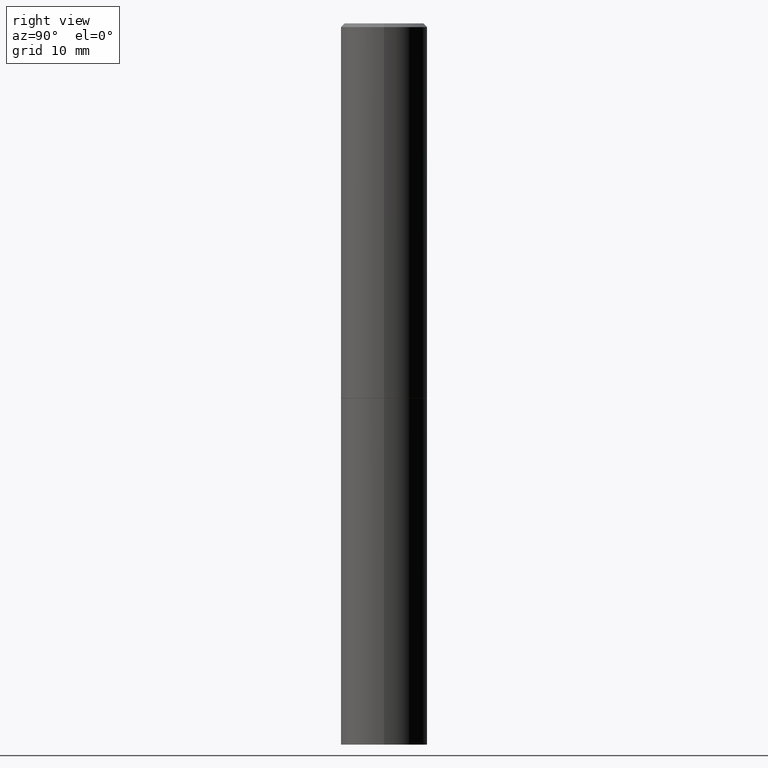
[diagram: clean part render]
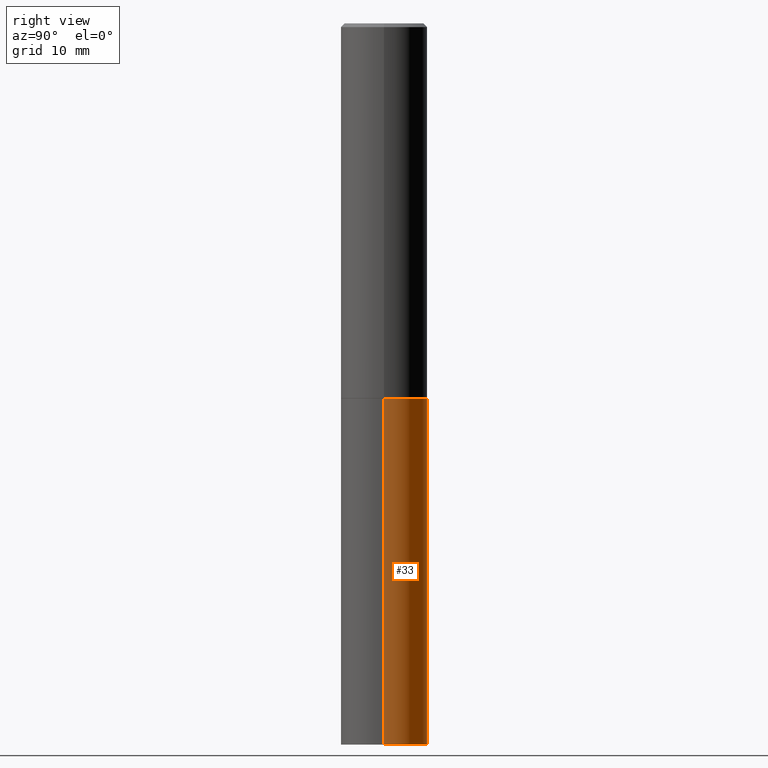
[diagram: same view with one face highlighted and labeled with its STEP entity id]
A machine part, right view. The second image highlights one B-rep face of the part: STEP entity #33.
In plain terms, the highlighted cylindrical surface (partial cylindrical patch) has radius 5.9995 mm, axis along (-0, 0, 1).
Its self-contained STEP definition (entity closure, byte-faithful):
#20 = CARTESIAN_POINT ( 'NONE',  ( 0.2361999999999999933, -8.797136381349184727E-15, -2.047200000000000131 ) ) ;
#22 = CARTESIAN_POINT ( 'NONE',  ( 5.006363740022212241E-29, -7.147760596879688202E-15, -2.047200000000000131 ) ) ;
#25 = VECTOR ( 'NONE', #352, 39.37007874015748143 ) ;
#33 = ADVANCED_FACE ( 'NONE', ( #71 ), #156, .T. ) ;
#35 = VECTOR ( 'NONE', #147, 39.37007874015748143 ) ;
#36 = CARTESIAN_POINT ( 'NONE',  ( 0.000000000000000000, 0.000000000000000000, 0.000000000000000000 ) ) ;
#41 = AXIS2_PLACEMENT_3D ( 'NONE', #36, #187, #351 ) ;
#49 = CIRCLE ( 'NONE', #234, 0.2361999999999999933 ) ;
#51 = VERTEX_POINT ( 'NONE', #219 ) ;
#71 = FACE_OUTER_BOUND ( 'NONE', #169, .T. ) ;
#80 = EDGE_CURVE ( 'NONE', #51, #238, #245, .T. ) ;
#87 = CARTESIAN_POINT ( 'NONE',  ( -0.2361999999999999933, 1.678301941865356591E-15, -1.161852468318208757E-29 ) ) ;
#95 = ORIENTED_EDGE ( 'NONE', *, *, #80, .F. ) ;
#96 = EDGE_CURVE ( 'NONE', #51, #188, #49, .T. ) ;
#99 = CARTESIAN_POINT ( 'NONE',  ( 9.627810689950883669E-29, -1.374596203102546341E-14, -3.937000000000000277 ) ) ;
#113 = CIRCLE ( 'NONE', #160, 0.2361999999999999933 ) ;
#135 = CARTESIAN_POINT ( 'NONE',  ( -0.2361999999999999933, -8.768559372087217836E-15, -2.047200000000000131 ) ) ;
#139 = CARTESIAN_POINT ( 'NONE',  ( -0.2361999999999999933, -8.768559372087217836E-15, -3.937000000000000277 ) ) ;
#147 = DIRECTION ( 'NONE',  ( -2.445468806185136877E-29, 3.491481338843145188E-15, 1.000000000000000000 ) ) ;
#150 = DIRECTION ( 'NONE',  ( 1.000000000000000000, -6.982962677686265133E-15, 0.000000000000000000 ) ) ;
#156 = CYLINDRICAL_SURFACE ( 'NONE', #41, 0.2361999999999999933 ) ;
#160 = AXIS2_PLACEMENT_3D ( 'NONE', #22, #224, #360 ) ;
#169 = EDGE_LOOP ( 'NONE', ( #202, #354, #300, #95 ) ) ;
#185 = EDGE_CURVE ( 'NONE', #238, #243, #113, .T. ) ;
#187 = DIRECTION ( 'NONE',  ( -2.445468806185136597E-29, 3.491481338843145583E-15, 1.000000000000000000 ) ) ;
#188 = VERTEX_POINT ( 'NONE', #139 ) ;
#202 = ORIENTED_EDGE ( 'NONE', *, *, #96, .T. ) ;
#215 = CARTESIAN_POINT ( 'NONE',  ( 0.2361999999999999933, -1.649375784469496131E-15, 1.151752954443000088E-29 ) ) ;
#219 = CARTESIAN_POINT ( 'NONE',  ( 0.2361999999999999933, -1.539533781549495994E-14, -3.937000000000000277 ) ) ;
#224 = DIRECTION ( 'NONE',  ( -2.445468806185136597E-29, 3.491481338843145583E-15, 1.000000000000000000 ) ) ;
#234 = AXIS2_PLACEMENT_3D ( 'NONE', #99, #346, #150 ) ;
#238 = VERTEX_POINT ( 'NONE', #20 ) ;
#243 = VERTEX_POINT ( 'NONE', #135 ) ;
#245 = LINE ( 'NONE', #215, #25 ) ;
#265 = LINE ( 'NONE', #87, #35 ) ;
#300 = ORIENTED_EDGE ( 'NONE', *, *, #185, .F. ) ;
#326 = EDGE_CURVE ( 'NONE', #188, #243, #265, .T. ) ;
#346 = DIRECTION ( 'NONE',  ( -2.445468806185136597E-29, 3.491481338843145583E-15, 1.000000000000000000 ) ) ;
#351 = DIRECTION ( 'NONE',  ( 1.000000000000000000, -6.982962677686266711E-15, 4.876176775795936353E-29 ) ) ;
#352 = DIRECTION ( 'NONE',  ( -2.445468806185136877E-29, 3.491481338843145188E-15, 1.000000000000000000 ) ) ;
#354 = ORIENTED_EDGE ( 'NONE', *, *, #326, .T. ) ;
#360 = DIRECTION ( 'NONE',  ( 1.000000000000000000, -6.982962677686265133E-15, 0.000000000000000000 ) ) ;